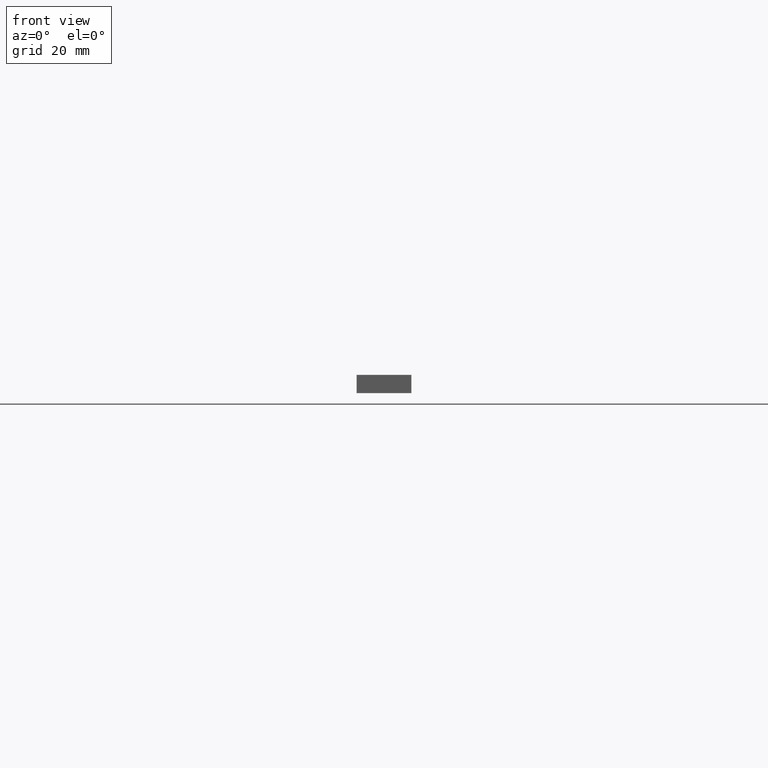
[diagram: clean part render]
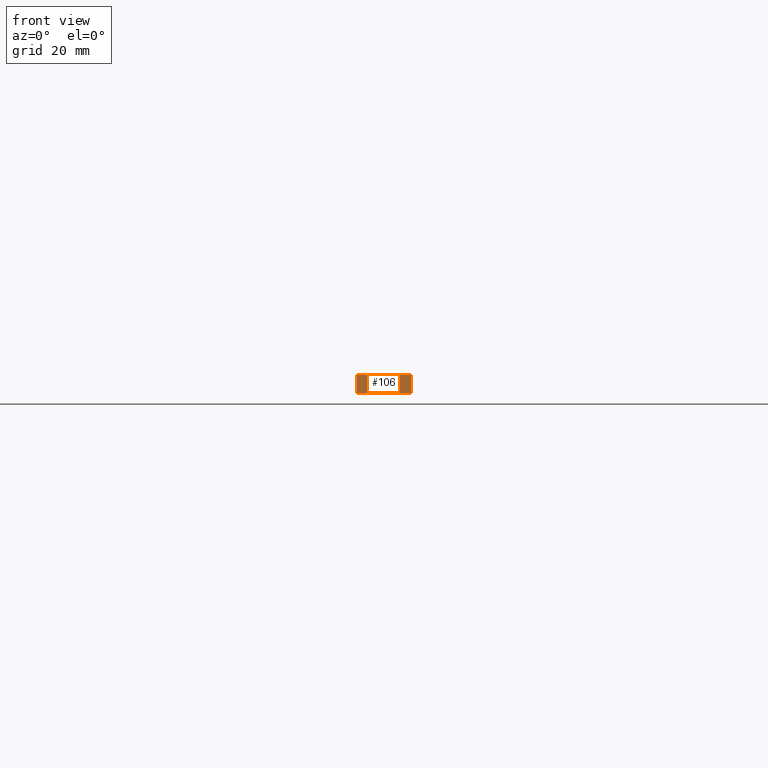
[diagram: same view with one face highlighted and labeled with its STEP entity id]
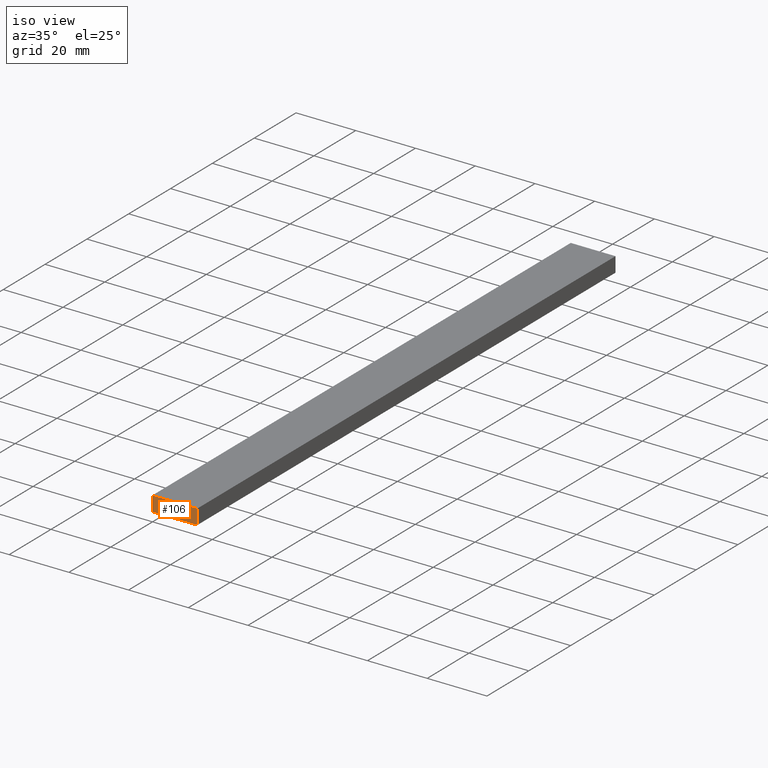
[diagram: same view with one face highlighted and labeled with its STEP entity id]
A machine part, front view. The second image highlights one B-rep face of the part: STEP entity #106.
A second angle (iso view) of the same face is appended — the face is thin or edge-on in the first view.
In plain terms, the highlighted planar face has unit normal (0, 1, 0).
Its self-contained STEP definition (entity closure, byte-faithful):
#2 = ORIENTED_EDGE ( 'NONE', *, *, #52, .F. ) ;
#10 = DIRECTION ( 'NONE',  ( -0.0000000000000000000, 1.000000000000000000, 0.0000000000000000000 ) ) ;
#31 = EDGE_LOOP ( 'NONE', ( #97, #2, #210, #68 ) ) ;
#35 = VECTOR ( 'NONE', #182, 1000.000000000000000 ) ;
#43 = CARTESIAN_POINT ( 'NONE',  ( 15.00000000000000000, 0.0000000000000000000, 5.000000000000000000 ) ) ;
#46 = EDGE_CURVE ( 'NONE', #79, #223, #211, .T. ) ;
#49 = CARTESIAN_POINT ( 'NONE',  ( 0.0000000000000000000, 0.0000000000000000000, 0.0000000000000000000 ) ) ;
#52 = EDGE_CURVE ( 'NONE', #149, #84, #154, .T. ) ;
#68 = ORIENTED_EDGE ( 'NONE', *, *, #46, .F. ) ;
#77 = CARTESIAN_POINT ( 'NONE',  ( 0.0000000000000000000, 0.0000000000000000000, 0.0000000000000000000 ) ) ;
#79 = VERTEX_POINT ( 'NONE', #115 ) ;
#81 = DIRECTION ( 'NONE',  ( 0.0000000000000000000, 0.0000000000000000000, -1.000000000000000000 ) ) ;
#84 = VERTEX_POINT ( 'NONE', #108 ) ;
#97 = ORIENTED_EDGE ( 'NONE', *, *, #229, .F. ) ;
#102 = VECTOR ( 'NONE', #219, 1000.000000000000000 ) ;
#103 = FACE_OUTER_BOUND ( 'NONE', #31, .T. ) ;
#106 = ADVANCED_FACE ( 'NONE', ( #103 ), #185, .F. ) ;
#108 = CARTESIAN_POINT ( 'NONE',  ( 0.0000000000000000000, 0.0000000000000000000, 0.0000000000000000000 ) ) ;
#115 = CARTESIAN_POINT ( 'NONE',  ( 0.0000000000000000000, 0.0000000000000000000, 5.000000000000000000 ) ) ;
#122 = AXIS2_PLACEMENT_3D ( 'NONE', #49, #10, #128 ) ;
#128 = DIRECTION ( 'NONE',  ( 1.000000000000000000, 0.0000000000000000000, 0.0000000000000000000 ) ) ;
#133 = VECTOR ( 'NONE', #81, 1000.000000000000000 ) ;
#137 = VECTOR ( 'NONE', #148, 1000.000000000000000 ) ;
#148 = DIRECTION ( 'NONE',  ( 1.000000000000000000, 0.0000000000000000000, 0.0000000000000000000 ) ) ;
#149 = VERTEX_POINT ( 'NONE', #168 ) ;
#150 = LINE ( 'NONE', #77, #35 ) ;
#154 = LINE ( 'NONE', #228, #102 ) ;
#168 = CARTESIAN_POINT ( 'NONE',  ( 15.00000000000000000, 0.0000000000000000000, 0.0000000000000000000 ) ) ;
#172 = LINE ( 'NONE', #214, #133 ) ;
#182 = DIRECTION ( 'NONE',  ( 0.0000000000000000000, 0.0000000000000000000, 1.000000000000000000 ) ) ;
#185 = PLANE ( 'NONE',  #122 ) ;
#198 = EDGE_CURVE ( 'NONE', #223, #149, #172, .T. ) ;
#210 = ORIENTED_EDGE ( 'NONE', *, *, #198, .F. ) ;
#211 = LINE ( 'NONE', #227, #137 ) ;
#214 = CARTESIAN_POINT ( 'NONE',  ( 15.00000000000000000, 0.0000000000000000000, 5.000000000000000000 ) ) ;
#219 = DIRECTION ( 'NONE',  ( -1.000000000000000000, 0.0000000000000000000, 0.0000000000000000000 ) ) ;
#223 = VERTEX_POINT ( 'NONE', #43 ) ;
#227 = CARTESIAN_POINT ( 'NONE',  ( 0.0000000000000000000, 0.0000000000000000000, 5.000000000000000000 ) ) ;
#228 = CARTESIAN_POINT ( 'NONE',  ( 15.00000000000000000, 0.0000000000000000000, 0.0000000000000000000 ) ) ;
#229 = EDGE_CURVE ( 'NONE', #84, #79, #150, .T. ) ;